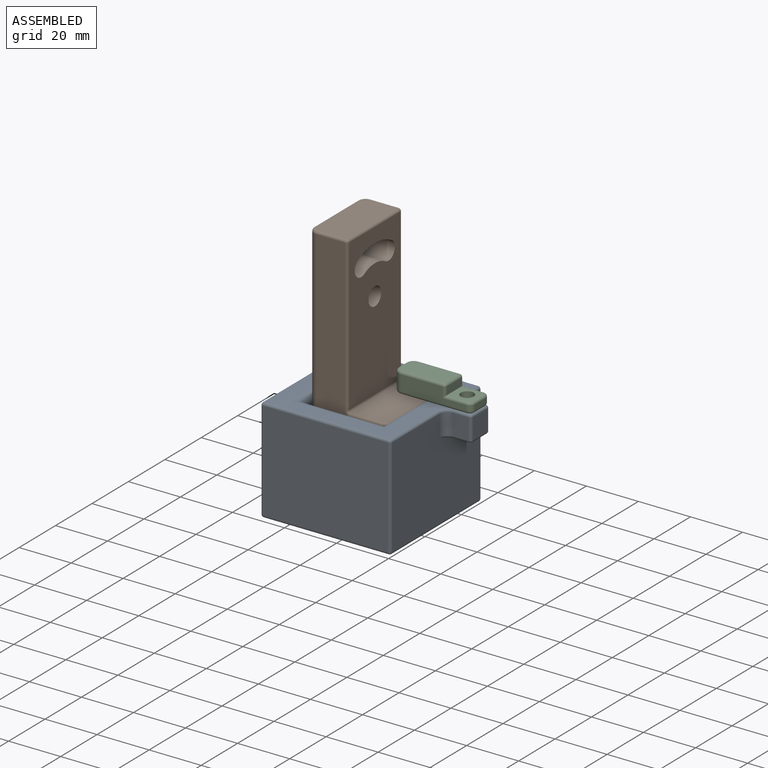
[diagram: assembled view]
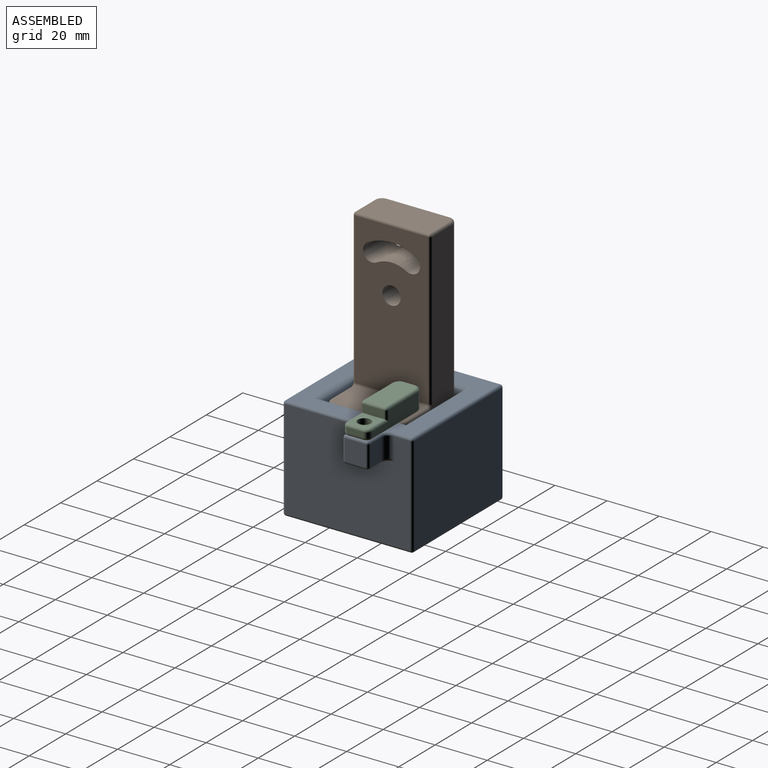
[diagram: assembled view, second angle]
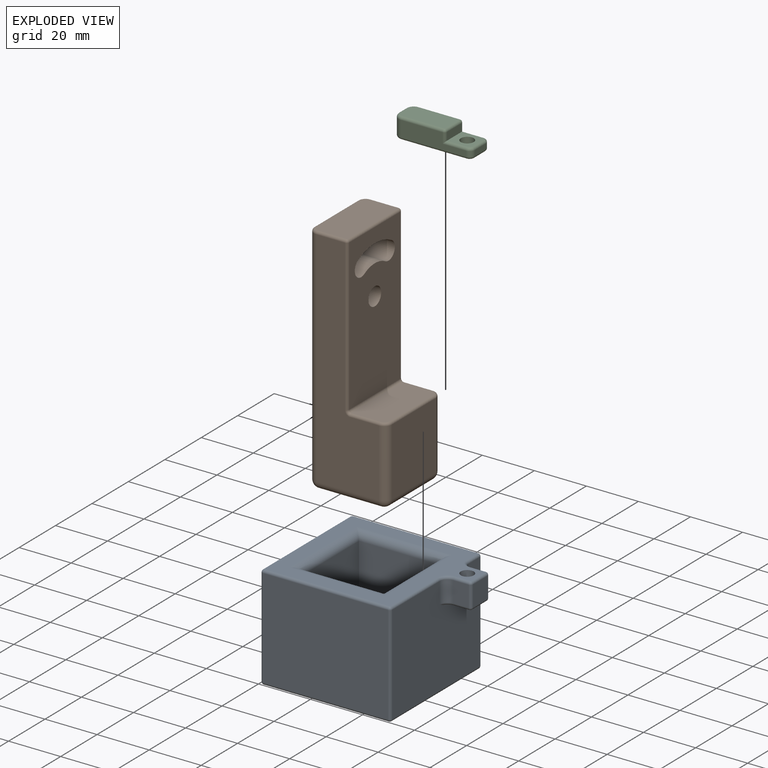
[diagram: exploded view]
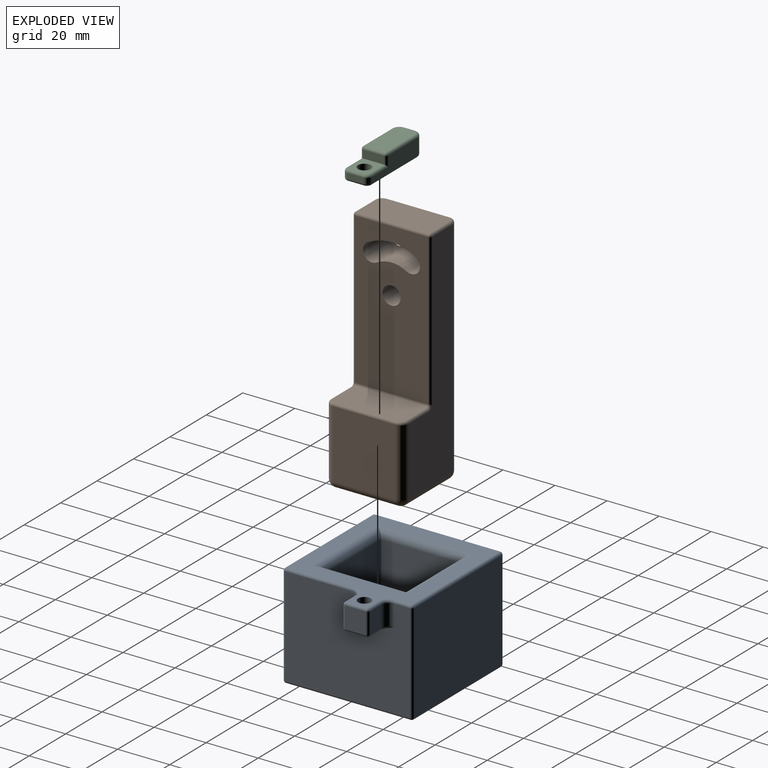
[diagram: exploded view, second angle]
ASSEMBLY  parts=3 mates=3
PART A: 59 faces, bbox 60x50x40 mm
  f0: plane 58x48mm, normal (0,0,1), area 1017mm2, adj f15,f16,f17,f18,f19,f20,f21,f22
  f1: plane 48x38mm, normal (1,0,0), area 1682mm2, adj f14,f20,f24,f29,f31,f40,f43,f44
  f2: plane 48x38mm, normal (0,-1,0), area 1824mm2, adj f21,f25,f31,f36
  f3: plane 48x38mm, normal (0,1,0), area 1824mm2, adj f23,f27,f29,f37
  f4: plane 48x38mm, normal (-1,0,0), area 1824mm2, adj f22,f25,f27,f33
  f5: plane 48x48mm, normal (0,0,-1), area 2304mm2, adj f33,f36,f37,f40
  f6: plane 30.8x27.8mm, normal (0,1,0), area 856.2mm2, adj f7,f9,f10,f16
  f7: plane 30.8x27.8mm, normal (-1,0,0), area 856.2mm2, adj f6,f8,f10,f17
  f8: plane 30.8x27.8mm, normal (0,-1,0), area 856.2mm2, adj f7,f9,f10,f19
  f9: plane 30.8x27.8mm, normal (1,0,0), area 856.2mm2, adj f6,f8,f10,f18
  f10: plane 30.8x30.8mm, normal (0,0,1), area 948.6mm2, adj f6,f7,f8,f9
  f11: plane 8x6mm, normal (0,1,0), area 48mm2, adj f42,f43,f46,f57
  f12: plane 8x6mm, normal (0,-1,0), area 48mm2, adj f41,f44,f50,f53
  f13: plane 8x8mm, normal (1,0,0), area 64mm2, adj f41,f42,f48,f55
  f14: plane 10.71x9mm, normal (0,0,-1), area 54.9mm2, adj f1,f15,f52,f53,f55,f57,f58
  f15: cylinder r=2.5mm len=10mm, axis (0,0,1), area 157.1mm2, adj f0,f14
  f16: cylinder r=3mm len=36.8mm, axis (-1,0,0), area 155.4mm2, adj f0,f6,f17,f18
  f17: cylinder r=3mm len=36.8mm, axis (0,-1,0), area 155.4mm2, adj f0,f7,f16,f19
  f18: cylinder r=3mm len=36.8mm, axis (0,1,0), area 155.4mm2, adj f0,f9,f16,f19
  f19: cylinder r=3mm len=36.8mm, axis (1,0,0), area 155.4mm2, adj f0,f8,f17,f18
  f20: cylinder r=1mm len=26mm, axis (0,-1,0), area 40.8mm2, adj f0,f1,f32,f51
  f21: cylinder r=1mm len=48mm, axis (-1,0,0), area 75.4mm2, adj f0,f2,f26,f32
  f22: cylinder r=1mm len=48mm, axis (0,1,0), area 75.4mm2, adj f0,f4,f26,f28
  f23: cylinder r=1mm len=48mm, axis (1,0,0), area 75.4mm2, adj f0,f3,f28,f30
  f24: cylinder r=1mm len=6mm, axis (0,-1,0), area 9.4mm2, adj f0,f1,f30,f45
  f25: cylinder r=1mm len=38mm, axis (0,0,-1), area 59.7mm2, adj f2,f4,f26,f34
  f26: sphere r=1mm, area 1.6mm2, adj f21,f22,f25
  f27: cylinder r=1mm len=38mm, axis (0,0,1), area 59.7mm2, adj f3,f4,f28,f35
  f28: sphere r=1mm, area 1.6mm2, adj f22,f23,f27
  f29: cylinder r=1mm len=38mm, axis (0,0,-1), area 59.7mm2, adj f1,f3,f30,f39
  f30: sphere r=1mm, area 1.6mm2, adj f23,f24,f29
  f31: cylinder r=1mm len=38mm, axis (0,0,1), area 59.7mm2, adj f1,f2,f32,f38
  f32: sphere r=1mm, area 1.6mm2, adj f20,f21,f31
  f33: cylinder r=1mm len=48mm, axis (0,-1,0), area 75.4mm2, adj f4,f5,f34,f35
  f34: sphere r=1mm, area 1.6mm2, adj f25,f33,f36
  f35: sphere r=1mm, area 1.6mm2, adj f27,f33,f37
  f36: cylinder r=1mm len=48mm, axis (1,0,0), area 75.4mm2, adj f2,f5,f34,f38
  f37: cylinder r=1mm len=48mm, axis (-1,0,0), area 75.4mm2, adj f3,f5,f35,f39
  f38: sphere r=1mm, area 1.6mm2, adj f31,f36,f40
  f39: sphere r=1mm, area 1.6mm2, adj f29,f37,f40
  f40: cylinder r=1mm len=48mm, axis (0,1,0), area 75.4mm2, adj f1,f5,f38,f39
  f41: cylinder r=1mm len=8mm, axis (0,0,-1), area 12.6mm2, adj f12,f13,f49,f54
  f42: cylinder r=1mm len=8mm, axis (0,0,1), area 12.6mm2, adj f11,f13,f47,f56
  f43: cylinder r=3mm len=8mm, axis (0,0,-1), area 37.7mm2, adj f1,f11,f45,f58
  f44: cylinder r=3mm len=8mm, axis (0,0,1), area 37.7mm2, adj f1,f12,f51,f52
  f45: torus R=4mm, axis (0,0,1), area 8.3mm2, adj f0,f24,f43,f46
  f46: cylinder r=1mm len=6mm, axis (-1,0,0), area 9.4mm2, adj f0,f11,f45,f47
  f47: sphere r=1mm, area 1.6mm2, adj f42,f46,f48
  f48: cylinder r=1mm len=8mm, axis (0,1,0), area 12.6mm2, adj f0,f13,f47,f49
  f49: sphere r=1mm, area 1.6mm2, adj f41,f48,f50
  f50: cylinder r=1mm len=6mm, axis (1,0,0), area 9.4mm2, adj f0,f12,f49,f51
  f51: torus R=4mm, axis (0,0,1), area 8.3mm2, adj f0,f20,f44,f50
  f52: torus R=4mm, axis (0,0,1), area 6.1mm2, adj f1,f14,f44,f53
  f53: cylinder r=1mm len=6mm, axis (-1,0,0), area 9.4mm2, adj f12,f14,f52,f54
  f54: sphere r=1mm, area 1.6mm2, adj f41,f53,f55
  f55: cylinder r=1mm len=8mm, axis (0,-1,0), area 12.6mm2, adj f13,f14,f54,f56
  f56: sphere r=1mm, area 1.6mm2, adj f42,f55,f57
  f57: cylinder r=1mm len=6mm, axis (1,0,0), area 9.4mm2, adj f11,f14,f56,f58
  f58: torus R=4mm, axis (0,0,1), area 6.1mm2, adj f1,f14,f43,f57
PART B: 43 faces, bbox 30.5x30.5x90 mm
  f0: plane 28x13mm, normal (0,0,1), area 362.3mm2, adj f23,f27,f28,f29,f30,f31
  f1: plane 86x24mm, normal (0,-1,0), area 1284.9mm2, adj f13,f16,f18,f25,f26,f27,f38
  f2: plane 26x24mm, normal (1,0,0), area 624mm2, adj f13,f14,f29,f35
  f3: plane 86x24mm, normal (0,1,0), area 1284.9mm2, adj f14,f15,f22,f31,f32,f33,f39
  f4: plane 86x24mm, normal (-1,0,0), area 1877.1mm2, adj f8,f9,f10,f11,f12,f15,f16,f19
  f5: plane 24x24mm, normal (0,0,-1), area 576mm2, adj f35,f38,f39,f42
  f6: plane 58x28mm, normal (1,0,0), area 1437.1mm2, adj f8,f9,f10,f11,f12,f20,f23,f25
  f7: plane 28x13mm, normal (0,0,1), area 362.3mm2, adj f17,f18,f19,f20,f21,f22
  f8: cylinder r=3.5mm len=15mm, axis (1,0,0), area 329.9mm2, adj f4,f6
  f9: cylinder r=18.5mm len=18.5mm, axis (1,0,0), area 290.6mm2, adj f4,f6,f10,f12
  f10: cylinder r=3.5mm len=15mm, axis (1,0,0), area 164.9mm2, adj f4,f6,f9,f11
  f11: cylinder r=11.5mm len=15mm, axis (1,0,0), area 180.6mm2, adj f4,f6,f10,f12
  f12: cylinder r=3.5mm len=15mm, axis (1,0,0), area 164.9mm2, adj f4,f6,f9,f11
  f13: cylinder r=3mm len=26mm, axis (0,0,1), area 122.5mm2, adj f1,f2,f28,f36
  f14: cylinder r=3mm len=26mm, axis (0,0,-1), area 122.5mm2, adj f2,f3,f30,f37
  f15: cylinder r=3mm len=86mm, axis (0,0,1), area 405.3mm2, adj f3,f4,f21,f41
  f16: cylinder r=3mm len=86mm, axis (0,0,-1), area 405.3mm2, adj f1,f4,f17,f40
  f17: torus R=2mm, axis (0,0,1), area 6.5mm2, adj f7,f16,f18,f19
  f18: cylinder r=1mm len=11mm, axis (-1,0,0), area 17.3mm2, adj f1,f7,f17,f24
  f19: cylinder r=1mm len=24mm, axis (0,1,0), area 37.7mm2, adj f4,f7,f17,f21
  f20: cylinder r=1mm len=28mm, axis (0,-1,0), area 44mm2, adj f6,f7,f24,f34
  f21: torus R=2mm, axis (0,0,1), area 6.5mm2, adj f7,f15,f19,f22
  f22: cylinder r=1mm len=11mm, axis (1,0,0), area 17.3mm2, adj f3,f7,f21,f34
  f23: cylinder r=1mm len=28mm, axis (0,1,0), area 44mm2, adj f0,f6,f26,f32
  f24: sphere r=1mm, area 1.6mm2, adj f18,f20,f25
  f25: cylinder r=1mm len=58mm, axis (0,0,-1), area 91.1mm2, adj f1,f6,f24,f26
  f26: torus R=2mm, axis (0,-1,0), area 3.4mm2, adj f1,f23,f25,f27
  f27: cylinder r=1mm len=11mm, axis (-1,0,0), area 17.3mm2, adj f0,f1,f26,f28
  f28: torus R=2mm, axis (0,0,1), area 6.5mm2, adj f0,f13,f27,f29
  f29: cylinder r=1mm len=24mm, axis (0,-1,0), area 37.7mm2, adj f0,f2,f28,f30
  f30: torus R=2mm, axis (0,0,1), area 6.5mm2, adj f0,f14,f29,f31
  f31: cylinder r=1mm len=11mm, axis (1,0,0), area 17.3mm2, adj f0,f3,f30,f32
  f32: torus R=2mm, axis (0,-1,0), area 3.4mm2, adj f3,f23,f31,f33
  f33: cylinder r=1mm len=58mm, axis (0,0,1), area 91.1mm2, adj f3,f6,f32,f34
  f34: sphere r=1mm, area 1.6mm2, adj f20,f22,f33
  f35: cylinder r=3mm len=24mm, axis (0,1,0), area 113.1mm2, adj f2,f5,f36,f37
  f36: sphere r=3mm, area 14.1mm2, adj f13,f35,f38
  f37: sphere r=3mm, area 14.1mm2, adj f14,f35,f39
  f38: cylinder r=3mm len=24mm, axis (1,0,0), area 113.1mm2, adj f1,f5,f36,f40
  f39: cylinder r=3mm len=24mm, axis (-1,0,0), area 113.1mm2, adj f3,f5,f37,f41
  f40: sphere r=3mm, area 14.1mm2, adj f16,f38,f42
  f41: sphere r=3mm, area 14.1mm2, adj f15,f39,f42
  f42: cylinder r=3mm len=24mm, axis (0,-1,0), area 113.1mm2, adj f4,f5,f40,f41
PART C: 36 faces, bbox 30.4x10.5x8 mm
  f0: plane 25x6mm, normal (0,-1,0), area 114mm2, adj f9,f12,f15,f16,f17,f28
  f1: plane 6x2mm, normal (1,0,0), area 12mm2, adj f9,f10,f21,f31
  f2: plane 25x6mm, normal (0,1,0), area 114mm2, adj f10,f11,f24,f25,f27,f35
  f3: cylinder r=2.5mm len=5mm, axis (0,0,1), area 62.8mm2, adj f6,f7
  f4: plane 6x4mm, normal (-1,0,0), area 24mm2, adj f11,f12,f20,f32
  f5: plane 18x8mm, normal (0,0,1), area 142.3mm2, adj f13,f16,f18,f20,f22,f24
  f6: plane 28x8mm, normal (0,0,-1), area 202.2mm2, adj f3,f28,f29,f30,f31,f32,f33,f34
  f7: plane 9x8mm, normal (0,0,1), area 51.9mm2, adj f3,f8,f17,f19,f21,f23,f25
  f8: plane 8x3mm, normal (1,0,0), area 24mm2, adj f7,f13,f15,f27
  f9: cylinder r=2mm len=2mm, axis (0,0,1), area 6.3mm2, adj f0,f1,f19,f29
  f10: cylinder r=2mm len=2mm, axis (0,0,-1), area 6.3mm2, adj f1,f2,f23,f33
  f11: cylinder r=3mm len=6mm, axis (0,0,1), area 28.3mm2, adj f2,f4,f22,f34
  f12: cylinder r=3mm len=6mm, axis (0,0,-1), area 28.3mm2, adj f0,f4,f18,f30
  f13: cylinder r=1mm len=8mm, axis (0,1,0), area 12.6mm2, adj f5,f8,f14,f26
  f14: sphere r=1mm, area 1.6mm2, adj f13,f15,f16
  f15: cylinder r=1mm len=4mm, axis (0,0,-1), area 5.3mm2, adj f0,f8,f14,f17
  f16: cylinder r=1mm len=16mm, axis (-1,0,0), area 25.1mm2, adj f0,f5,f14,f18
  f17: cylinder r=1mm len=9mm, axis (-1,0,0), area 13.1mm2, adj f0,f7,f15,f19
  f18: torus R=2mm, axis (0,0,1), area 6.5mm2, adj f5,f12,f16,f20
  f19: torus R=1mm, axis (0,0,1), area 4mm2, adj f7,f9,f17,f21
  f20: cylinder r=1mm len=4mm, axis (0,1,0), area 6.3mm2, adj f4,f5,f18,f22
  f21: cylinder r=1mm len=6mm, axis (0,-1,0), area 9.4mm2, adj f1,f7,f19,f23
  f22: torus R=2mm, axis (0,0,1), area 6.5mm2, adj f5,f11,f20,f24
  f23: torus R=1mm, axis (0,0,1), area 4mm2, adj f7,f10,f21,f25
  f24: cylinder r=1mm len=16mm, axis (1,0,0), area 25.1mm2, adj f2,f5,f22,f26
  f25: cylinder r=1mm len=9mm, axis (1,0,0), area 13.1mm2, adj f2,f7,f23,f27
  f26: sphere r=1mm, area 1.6mm2, adj f13,f24,f27
  f27: cylinder r=1mm len=4mm, axis (0,0,1), area 5.3mm2, adj f2,f8,f25,f26
  f28: cylinder r=1mm len=25mm, axis (1,0,0), area 39.3mm2, adj f0,f6,f29,f30
  f29: torus R=1mm, axis (0,0,1), area 4mm2, adj f6,f9,f28,f31
  f30: torus R=2mm, axis (0,0,1), area 6.5mm2, adj f6,f12,f28,f32
  f31: cylinder r=1mm len=6mm, axis (0,1,0), area 9.4mm2, adj f1,f6,f29,f33
  f32: cylinder r=1mm len=4mm, axis (0,-1,0), area 6.3mm2, adj f4,f6,f30,f34
  f33: torus R=1mm, axis (0,0,1), area 4mm2, adj f6,f10,f31,f35
  f34: torus R=2mm, axis (0,0,1), area 6.5mm2, adj f6,f11,f32,f35
  f35: cylinder r=1mm len=25mm, axis (-1,0,0), area 39.3mm2, adj f2,f6,f33,f34
PLACE A t=(-11.83,1.57,-11.74)mm fixed
PLACE B t=(-10.54,1.85,-2.54)mm
PLACE C t=(8.17,11.57,28.26)mm
MATE planar A.f0 <-> C.f6  axis (0,0,1) through (12.17,3.57,28.26)mm
MATE slider A.f15 <-> C.f3  axis (0,0,1) through (18.17,11.57,23.26)mm
MATE planar B.f5 <-> A.f10  axis (0,0,-1) through (-22.54,1.85,-2.54)mm
